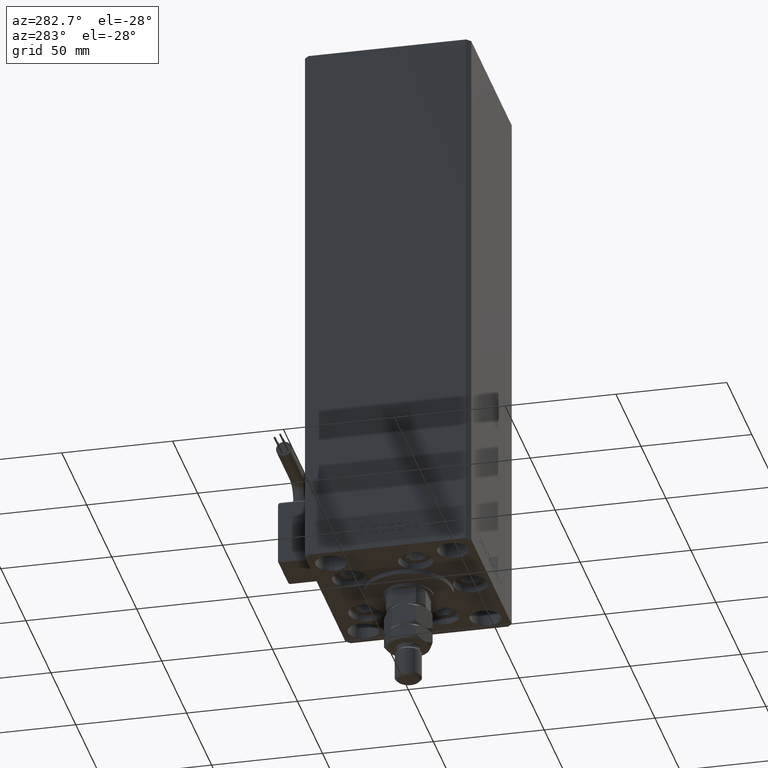
[diagram: clean part render]
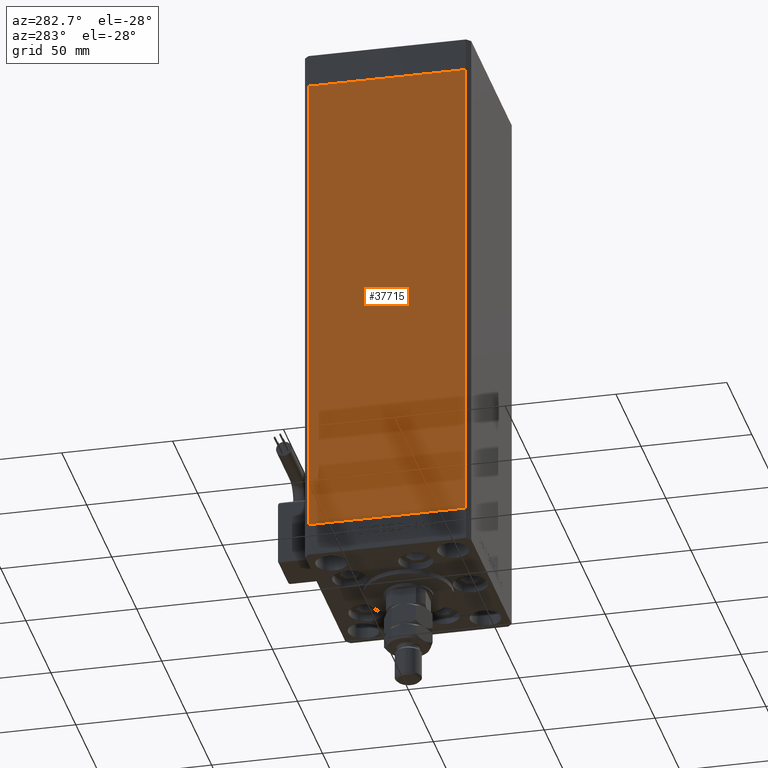
[diagram: same view with one face highlighted and labeled with its STEP entity id]
A machine part, auxiliary view. The second image highlights one B-rep face of the part: STEP entity #37715.
In plain terms, the highlighted planar face has unit normal (1, 0, 0).
Its self-contained STEP definition (entity closure, byte-faithful):
#1229 = LINE ( 'NONE', #37501, #38437 ) ;
#1620 = FACE_OUTER_BOUND ( 'NONE', #33349, .T. ) ;
#2089 = EDGE_CURVE ( 'NONE', #21007, #31491, #26153, .T. ) ;
#2311 = ORIENTED_EDGE ( 'NONE', *, *, #40811, .T. ) ;
#2744 = CARTESIAN_POINT ( 'NONE',  ( -42.50000000000000711, 35.50000000000001421, 218.5000000000000000 ) ) ;
#3514 = VECTOR ( 'NONE', #28492, 1000.000000000000000 ) ;
#5329 = CARTESIAN_POINT ( 'NONE',  ( -42.49999999999998579, -35.50000000000000711, 0.000000000000000000 ) ) ;
#10784 = ORIENTED_EDGE ( 'NONE', *, *, #2089, .T. ) ;
#13691 = DIRECTION ( 'NONE',  ( -0.000000000000000000, -0.000000000000000000, -1.000000000000000000 ) ) ;
#14935 = LINE ( 'NONE', #31443, #21547 ) ;
#17225 = CARTESIAN_POINT ( 'NONE',  ( -42.50000000000000711, 35.50000000000001421, 218.5000000000000000 ) ) ;
#18215 = DIRECTION ( 'NONE',  ( -0.000000000000000000, -0.000000000000000000, -1.000000000000000000 ) ) ;
#18545 = ORIENTED_EDGE ( 'NONE', *, *, #20453, .F. ) ;
#19113 = AXIS2_PLACEMENT_3D ( 'NONE', #43035, #51659, #27309 ) ;
#20453 = EDGE_CURVE ( 'NONE', #21007, #24918, #1229, .T. ) ;
#21007 = VERTEX_POINT ( 'NONE', #2744 ) ;
#21547 = VECTOR ( 'NONE', #18215, 1000.000000000000000 ) ;
#22152 = VERTEX_POINT ( 'NONE', #5329 ) ;
#24918 = VERTEX_POINT ( 'NONE', #25435 ) ;
#25435 = CARTESIAN_POINT ( 'NONE',  ( -42.49999999999998579, -35.50000000000000711, 218.5000000000000000 ) ) ;
#26153 = LINE ( 'NONE', #17225, #41270 ) ;
#27309 = DIRECTION ( 'NONE',  ( -2.931927001650941360E-16, 1.000000000000000000, 0.000000000000000000 ) ) ;
#27962 = CARTESIAN_POINT ( 'NONE',  ( -42.50000000000000711, 35.50000000000001421, 0.000000000000000000 ) ) ;
#28492 = DIRECTION ( 'NONE',  ( 2.931927001650941360E-16, -1.000000000000000000, 0.000000000000000000 ) ) ;
#31443 = CARTESIAN_POINT ( 'NONE',  ( -42.49999999999998579, -35.50000000000000711, 218.5000000000000000 ) ) ;
#31491 = VERTEX_POINT ( 'NONE', #52553 ) ;
#33349 = EDGE_LOOP ( 'NONE', ( #2311, #41293, #18545, #10784 ) ) ;
#34352 = EDGE_CURVE ( 'NONE', #24918, #22152, #14935, .T. ) ;
#37501 = CARTESIAN_POINT ( 'NONE',  ( -42.50000000000000711, 35.50000000000001421, 218.5000000000000000 ) ) ;
#37715 = ADVANCED_FACE ( 'NONE', ( #1620 ), #51135, .F. ) ;
#38437 = VECTOR ( 'NONE', #49938, 1000.000000000000000 ) ;
#40811 = EDGE_CURVE ( 'NONE', #31491, #22152, #48791, .T. ) ;
#41270 = VECTOR ( 'NONE', #13691, 1000.000000000000000 ) ;
#41293 = ORIENTED_EDGE ( 'NONE', *, *, #34352, .F. ) ;
#43035 = CARTESIAN_POINT ( 'NONE',  ( -42.50000000000000711, 35.50000000000001421, 218.5000000000000000 ) ) ;
#48791 = LINE ( 'NONE', #27962, #3514 ) ;
#49938 = DIRECTION ( 'NONE',  ( 2.931927001650941360E-16, -1.000000000000000000, 0.000000000000000000 ) ) ;
#51135 = PLANE ( 'NONE',  #19113 ) ;
#51659 = DIRECTION ( 'NONE',  ( 1.000000000000000000, 2.931927001650941360E-16, -0.000000000000000000 ) ) ;
#52553 = CARTESIAN_POINT ( 'NONE',  ( -42.50000000000000711, 35.50000000000001421, 0.000000000000000000 ) ) ;